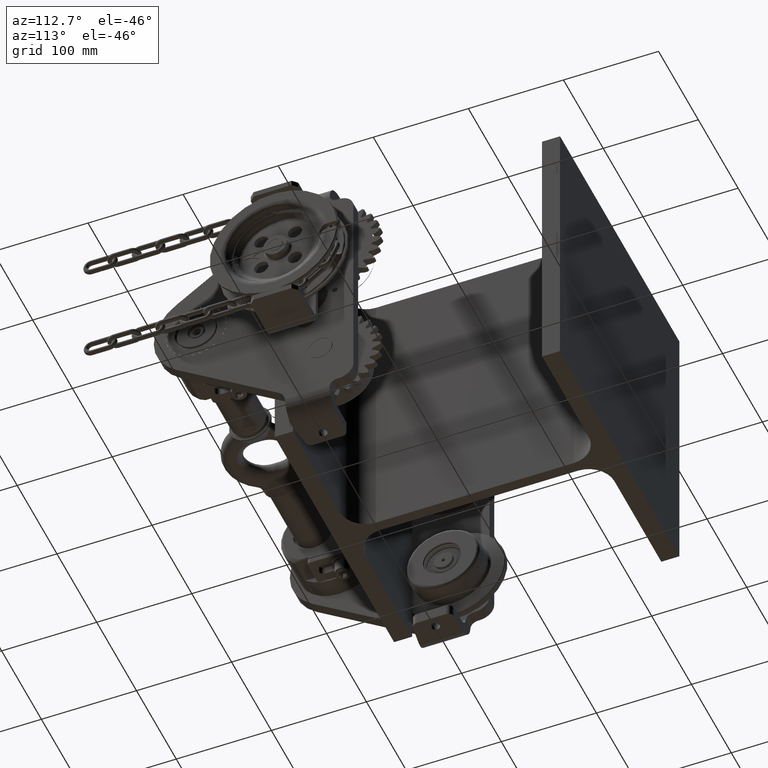
[diagram: clean part render]
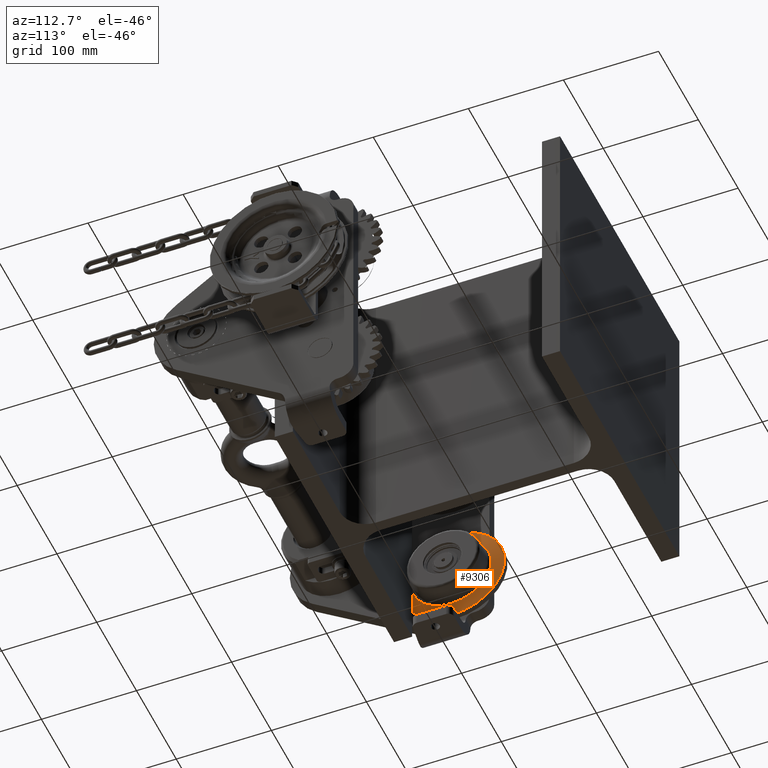
[diagram: same view with one face highlighted and labeled with its STEP entity id]
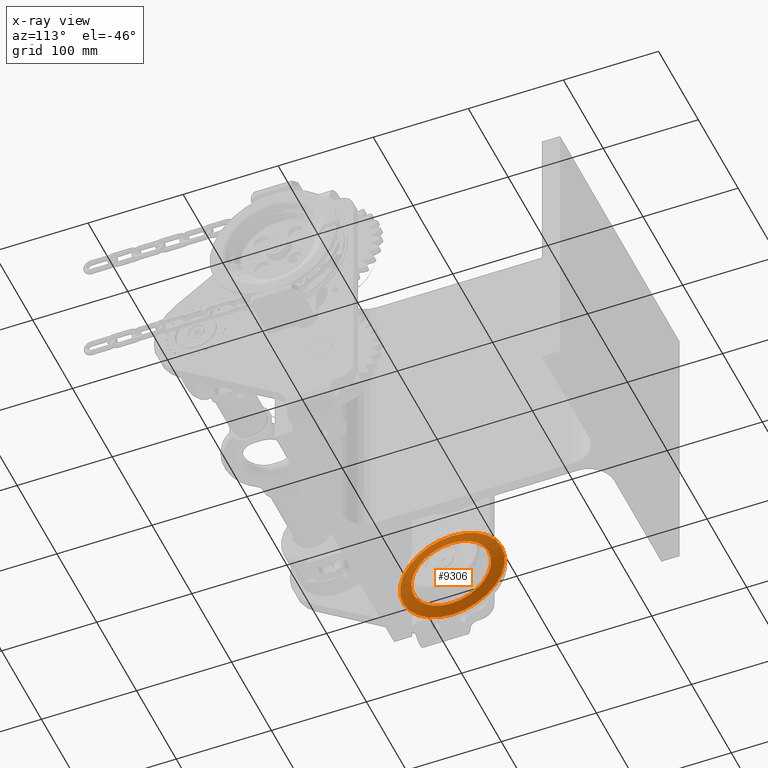
[diagram: x-ray of the same camera — body ghosted, the highlighted face saturated]
A machine part, auxiliary view. The second image highlights one B-rep face of the part: STEP entity #9306.
The next image is the same camera in x-ray: the body ghosted, the highlighted face saturated — about 0% of this face is hidden behind the body in this view.
In plain terms, the highlighted conical surface has half-angle 78 deg.
Its self-contained STEP definition (entity closure, byte-faithful):
#1055 = DIRECTION ( 'NONE',  ( -1.000000000000000000, -0.0000000000000000000, -0.0000000000000000000 ) ) ;
#5139 = FACE_BOUND ( 'NONE', #31963, .T. ) ;
#9306 = ADVANCED_FACE ( 'NONE', ( #51333, #5139 ), #32977, .T. ) ;
#9326 = CIRCLE ( 'NONE', #36357, 55.10395584540886200 ) ;
#10559 = AXIS2_PLACEMENT_3D ( 'NONE', #18673, #1055, #23005 ) ;
#18673 = CARTESIAN_POINT ( 'NONE',  ( -152.5972667968401900, -90.99999999999994300, -75.00000000000015600 ) ) ;
#23005 = DIRECTION ( 'NONE',  ( 0.0000000000000000000, 0.0000000000000000000, 1.000000000000000000 ) ) ;
#23234 = CARTESIAN_POINT ( 'NONE',  ( -152.5972667968401900, -90.99999999999994300, -75.00000000000015600 ) ) ;
#23930 = DIRECTION ( 'NONE',  ( 1.000000000000000000, 0.0000000000000000000, 0.0000000000000000000 ) ) ;
#25040 = CARTESIAN_POINT ( 'NONE',  ( -152.5972667968401900, -90.99999999999994300, -32.99824475966354200 ) ) ;
#28648 = AXIS2_PLACEMENT_3D ( 'NONE', #23234, #41995, #45439 ) ;
#29160 = ORIENTED_EDGE ( 'NONE', *, *, #48210, .T. ) ;
#29171 = EDGE_LOOP ( 'NONE', ( #29160 ) ) ;
#30346 = CARTESIAN_POINT ( 'NONE',  ( -155.3822255077652400, -90.99999999999994300, -130.1039558454090200 ) ) ;
#31963 = EDGE_LOOP ( 'NONE', ( #37308 ) ) ;
#32687 = DIRECTION ( 'NONE',  ( 0.0000000000000000000, 0.0000000000000000000, -1.000000000000000000 ) ) ;
#32977 = CONICAL_SURFACE ( 'NONE', #28648, 42.00175524033660700, 1.361356816555576100 ) ;
#36357 = AXIS2_PLACEMENT_3D ( 'NONE', #36659, #23930, #32687 ) ;
#36659 = CARTESIAN_POINT ( 'NONE',  ( -155.3822255077652400, -90.99999999999994300, -75.00000000000015600 ) ) ;
#37308 = ORIENTED_EDGE ( 'NONE', *, *, #37551, .T. ) ;
#37551 = EDGE_CURVE ( 'NONE', #55448, #55448, #44741, .T. ) ;
#41995 = DIRECTION ( 'NONE',  ( -1.000000000000000000, -0.0000000000000000000, -0.0000000000000000000 ) ) ;
#44741 = CIRCLE ( 'NONE', #10559, 42.00175524033660700 ) ;
#45439 = DIRECTION ( 'NONE',  ( 0.0000000000000000000, 0.0000000000000000000, 1.000000000000000000 ) ) ;
#48210 = EDGE_CURVE ( 'NONE', #52000, #52000, #9326, .T. ) ;
#51333 = FACE_OUTER_BOUND ( 'NONE', #29171, .T. ) ;
#52000 = VERTEX_POINT ( 'NONE', #30346 ) ;
#55448 = VERTEX_POINT ( 'NONE', #25040 ) ;